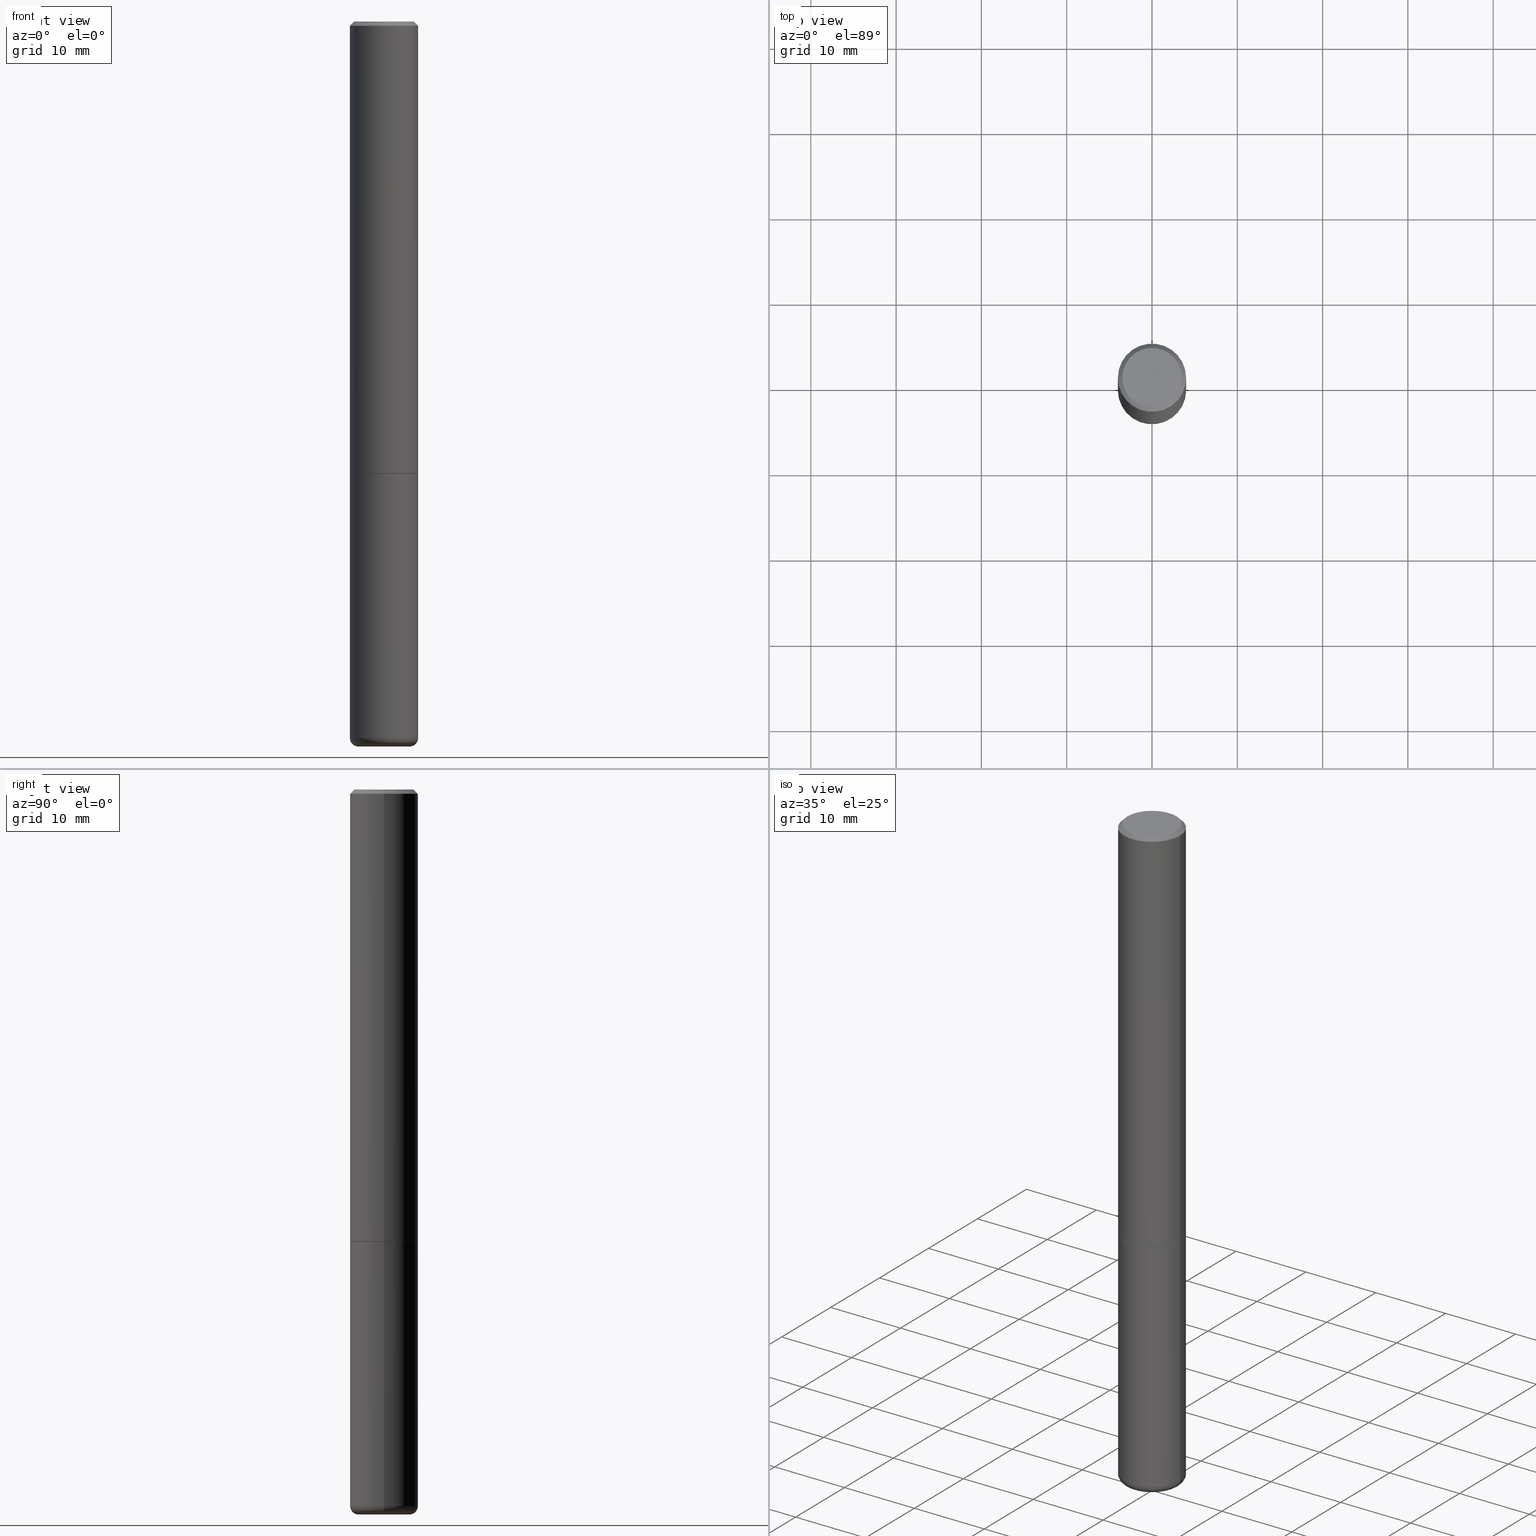
[diagram: canonical four-view strip — front | top / right | iso, engineering-drawing reading convention]
A machine part, canonical four-view strip (front | top / right | iso — engineering-drawing reading convention). The complete STEP part file that produces these views, byte-faithful:
ISO-10303-21;
HEADER;
FILE_DESCRIPTION (( 'STEP AP203' ),
    '1' );
FILE_NAME ('74390.STEP',
    '2024-03-06T15:10:43',
    ( '' ),
    ( '' ),
    'SwSTEP 2.0',
    'SolidWorks 2023',
    '' );
FILE_SCHEMA (( 'CONFIG_CONTROL_DESIGN' ));
ENDSEC;

DATA;
#1 = FACE_OUTER_BOUND ( 'NONE', #362, .T. ) ;
#2 = APPLICATION_CONTEXT ( 'configuration controlled 3d designs of mechanical parts and assemblies' ) ;
#3 = CC_DESIGN_APPROVAL ( #226, ( #187 ) ) ;
#4 = DIRECTION ( 'NONE',  ( 1.000000000000000000, -6.982962677686266711E-15, 0.000000000000000000 ) ) ;
#5 = DIRECTION ( 'NONE',  ( -6.982962677686266711E-15, -1.000000000000000000, 3.491481338843145583E-15 ) ) ;
#6 = ORIENTED_EDGE ( 'NONE', *, *, #119, .T. ) ;
#7 = PERSON ( 'UNSPECIFIED', 'UNSPECIFIED', 'UNSPECIFIED', ('UNSPECIFIED'), ('UNSPECIFIED'), ('UNSPECIFIED') ) ;
#8 = DIRECTION ( 'NONE',  ( 0.000000000000000000, 0.000000000000000000, 1.000000000000000000 ) ) ;
#9 = CIRCLE ( 'NONE', #244, 0.1575000000000001954 ) ;
#10 = CARTESIAN_POINT ( 'NONE',  ( 0.1180999999999999966, -1.237136582792291392E-14, -3.307099999999999707 ) ) ;
#11 = COORDINATED_UNIVERSAL_TIME_OFFSET ( 5, 0, .BEHIND. ) ;
#12 = DIRECTION ( 'NONE',  ( 1.000000000000000000, -6.982962677686271444E-15, 4.883557194083114583E-29 ) ) ;
#13 = ORIENTED_EDGE ( 'NONE', *, *, #220, .T. ) ;
#14 = PERSON_AND_ORGANIZATION_ROLE ( 'design_supplier' ) ;
#15 = PRODUCT_DEFINITION ( 'UNKNOWN', '', #187, #38 ) ;
#16 = ORIENTED_EDGE ( 'NONE', *, *, #354, .F. ) ;
#17 = CALENDAR_DATE ( 2024, 6, 3 ) ;
#18 = CC_DESIGN_APPROVAL ( #352, ( #15 ) ) ;
#19 = EDGE_LOOP ( 'NONE', ( #369, #106, #6, #74 ) ) ;
#20 = FACE_OUTER_BOUND ( 'NONE', #294, .T. ) ;
#21 = ORIENTED_EDGE ( 'NONE', *, *, #149, .T. ) ;
#22 = VERTEX_POINT ( 'NONE', #82 ) ;
#23 = VECTOR ( 'NONE', #406, 39.37007874015748143 ) ;
#24 = AXIS2_PLACEMENT_3D ( 'NONE', #68, #8, #104 ) ;
#25 = LINE ( 'NONE', #274, #23 ) ;
#26 = LINE ( 'NONE', #156, #56 ) ;
#27 = DIRECTION ( 'NONE',  ( -2.445468806185136597E-29, 3.491481338843145583E-15, 1.000000000000000000 ) ) ;
#28 = EDGE_CURVE ( 'NONE', #173, #402, #25, .T. ) ;
#29 = DIRECTION ( 'NONE',  ( -2.445468806185136597E-29, 3.491481338843145583E-15, 1.000000000000000000 ) ) ;
#30 = AXIS2_PLACEMENT_3D ( 'NONE', #51, #243, #83 ) ;
#31 = CONICAL_SURFACE ( 'NONE', #321, 0.1575000000000000289, 0.7853981633974481680 ) ;
#32 = CARTESIAN_POINT ( 'NONE',  ( 0.000000000000000000, 0.000000000000000000, 0.000000000000000000 ) ) ;
#33 = CARTESIAN_POINT ( 'NONE',  ( 0.1180999999999999966, -1.250893019267333313E-14, -3.346499999999999364 ) ) ;
#34 = CC_DESIGN_PERSON_AND_ORGANIZATION_ASSIGNMENT ( #334, #115, ( #48 ) ) ;
#35 = CARTESIAN_POINT ( 'NONE',  ( 0.000000000000000000, 0.000000000000000000, 0.000000000000000000 ) ) ;
#36 = CC_DESIGN_APPROVAL ( #384, ( #48 ) ) ;
#37 = ORIENTED_EDGE ( 'NONE', *, *, #205, .T. ) ;
#38 = DESIGN_CONTEXT ( 'detailed design', #52, 'design' ) ;
#39 = DIRECTION ( 'NONE',  ( -2.445468806185136597E-29, 3.491481338843145583E-15, 1.000000000000000000 ) ) ;
#40 = CONICAL_SURFACE ( 'NONE', #151, 0.1565000000000000002, 0.7853981633975165577 ) ;
#41 = LOCAL_TIME ( 10, 10, 43.00000000000000000, #261 ) ;
#42 =( GEOMETRIC_REPRESENTATION_CONTEXT ( 3 ) GLOBAL_UNCERTAINTY_ASSIGNED_CONTEXT ( ( #91 ) ) GLOBAL_UNIT_ASSIGNED_CONTEXT ( ( #101, #228, #129 ) ) REPRESENTATION_CONTEXT ( 'NONE', 'WORKASPACE' ) );
#43 = EDGE_LOOP ( 'NONE', ( #267, #67, #214, #16 ) ) ;
#44 = CC_DESIGN_PERSON_AND_ORGANIZATION_ASSIGNMENT ( #168, #171, ( #229 ) ) ;
#45 = LINE ( 'NONE', #270, #63 ) ;
#46 = EDGE_LOOP ( 'NONE', ( #309, #150, #155, #201 ) ) ;
#47 = PLANE ( 'NONE',  #86 ) ;
#48 = SECURITY_CLASSIFICATION ( '', '', #77 ) ;
#49 = PRODUCT_DEFINITION_SHAPE ( 'NONE', 'NONE',  #15 ) ;
#50 = CYLINDRICAL_SURFACE ( 'NONE', #98, 0.1575000000000000844 ) ;
#51 = CARTESIAN_POINT ( 'NONE',  ( -4.906101647375532782E-45, 7.004612900788102525E-31, 2.006200870347193393E-16 ) ) ;
#52 = APPLICATION_CONTEXT ( 'configuration controlled 3d designs of mechanical parts and assemblies' ) ;
#53 = VERTEX_POINT ( 'NONE', #337 ) ;
#54 = VERTEX_POINT ( 'NONE', #113 ) ;
#55 = EDGE_CURVE ( 'NONE', #138, #301, #186, .T. ) ;
#56 = VECTOR ( 'NONE', #121, 39.37007874015748143 ) ;
#57 = CARTESIAN_POINT ( 'NONE',  ( 0.1565000000000000002, -8.378507768821891605E-15, -2.086699999999999999 ) ) ;
#58 = ADVANCED_FACE ( 'NONE', ( #207 ), #47, .F. ) ;
#59 = CARTESIAN_POINT ( 'NONE',  ( 5.102959757866523939E-29, -7.285674109763990928E-15, -2.086699999999999999 ) ) ;
#60 = DIRECTION ( 'NONE',  ( -2.445468806185136597E-29, 3.491481338843145583E-15, 1.000000000000000000 ) ) ;
#61 = CARTESIAN_POINT ( 'NONE',  ( 4.890937612370281041E-31, -6.982962677686302702E-17, -0.02000000000000003511 ) ) ;
#62 = CIRCLE ( 'NONE', #158, 0.1575000000000000011 ) ;
#63 = VECTOR ( 'NONE', #329, 39.37007874015748143 ) ;
#64 = CARTESIAN_POINT ( 'NONE',  ( 4.890937612370281041E-31, -6.982962677686302702E-17, -0.02000000000000003511 ) ) ;
#65 = LENGTH_MEASURE_WITH_UNIT ( LENGTH_MEASURE( 0.02539999999999999897 ), #259 );
#66 = CONICAL_SURFACE ( 'NONE', #415, 0.1575000000000000289, 0.7853981633974481680 ) ;
#67 = ORIENTED_EDGE ( 'NONE', *, *, #85, .T. ) ;
#68 = CARTESIAN_POINT ( 'NONE',  ( 0.000000000000000000, 0.000000000000000000, 0.000000000000000000 ) ) ;
#69 = DIRECTION ( 'NONE',  ( -2.445468806185136597E-29, 3.491481338843145583E-15, 1.000000000000000000 ) ) ;
#70 = ORIENTED_EDGE ( 'NONE', *, *, #269, .T. ) ;
#71 = PERSON_AND_ORGANIZATION_ROLE ( 'creator' ) ;
#72 = CARTESIAN_POINT ( 'NONE',  ( 9.601573681818600950E-16, 0.1374999999999997891, -3.797686405735721404E-16 ) ) ;
#73 = PERSON_AND_ORGANIZATION ( #7, #311 ) ;
#74 = ORIENTED_EDGE ( 'NONE', *, *, #149, .F. ) ;
#75 = DIRECTION ( 'NONE',  ( 1.000000000000000000, -6.982962677686268288E-15, 0.000000000000000000 ) ) ;
#76 = ORIENTED_EDGE ( 'NONE', *, *, #205, .F. ) ;
#77 = SECURITY_CLASSIFICATION_LEVEL ( 'unclassified' ) ;
#78 = CARTESIAN_POINT ( 'NONE',  ( 5.102959757866523939E-29, -7.285674109763990928E-15, -2.086699999999999999 ) ) ;
#79 = ORIENTED_EDGE ( 'NONE', *, *, #367, .T. ) ;
#80 = CIRCLE ( 'NONE', #191, 0.1180999999999999966 ) ;
#81 = CIRCLE ( 'NONE', #316, 0.1575000000000000011 ) ;
#82 = CARTESIAN_POINT ( 'NONE',  ( 0.1374999999999997891, -1.046838268059731505E-15, 2.006200870347263405E-16 ) ) ;
#83 = DIRECTION ( 'NONE',  ( 1.000000000000000000, -6.982962677686267499E-15, 4.874794762600771100E-29 ) ) ;
#84 = FACE_OUTER_BOUND ( 'NONE', #231, .T. ) ;
#85 = EDGE_CURVE ( 'NONE', #22, #54, #306, .T. ) ;
#86 = AXIS2_PLACEMENT_3D ( 'NONE', #246, #336, #179 ) ;
#87 = TOROIDAL_SURFACE ( 'NONE', #192, 0.1180999999999999966, 0.03939999999999978936 ) ;
#88 = DIRECTION ( 'NONE',  ( -2.445468806185136597E-29, 3.491481338843145583E-15, 1.000000000000000000 ) ) ;
#89 = CARTESIAN_POINT ( 'NONE',  ( 1.899479400543291086E-28, 3.797771773731543077E-15, -3.346499999999999808 ) ) ;
#90 = FACE_OUTER_BOUND ( 'NONE', #141, .T. ) ;
#91 = UNCERTAINTY_MEASURE_WITH_UNIT (LENGTH_MEASURE( 1.000000000000000082E-05 ), #101, 'distance_accuracy_value', 'NONE');
#92 = CARTESIAN_POINT ( 'NONE',  ( 0.1575000000000001954, -8.381999250160736190E-15, -2.085699999999999665 ) ) ;
#93 = CIRCLE ( 'NONE', #235, 0.1575000000000001954 ) ;
#94 = ORIENTED_EDGE ( 'NONE', *, *, #164, .T. ) ;
#95 = EDGE_CURVE ( 'NONE', #22, #234, #97, .T. ) ;
#96 = DATE_AND_TIME ( #393, #41 ) ;
#97 = CIRCLE ( 'NONE', #30, 0.1374999999999997891 ) ;
#98 = AXIS2_PLACEMENT_3D ( 'NONE', #237, #39, #266 ) ;
#99 = PERSON_AND_ORGANIZATION ( #7, #311 ) ;
#100 = DIRECTION ( 'NONE',  ( 1.000000000000000000, -6.982962677686268288E-15, 0.000000000000000000 ) ) ;
#101 =( CONVERSION_BASED_UNIT ( 'INCH', #65 ) LENGTH_UNIT ( ) NAMED_UNIT ( #136 ) );
#102 = DIRECTION ( 'NONE',  ( 2.445468806185136597E-29, -3.491481338843145583E-15, -1.000000000000000000 ) ) ;
#103 = VERTEX_POINT ( 'NONE', #184 ) ;
#104 = DIRECTION ( 'NONE',  ( 1.000000000000000000, 0.000000000000000000, 0.000000000000000000 ) ) ;
#105 = CYLINDRICAL_SURFACE ( 'NONE', #153, 0.1575000000000000844 ) ;
#106 = ORIENTED_EDGE ( 'NONE', *, *, #250, .T. ) ;
#107 = AXIS2_PLACEMENT_3D ( 'NONE', #72, #200, #373 ) ;
#108 = APPROVAL_STATUS ( 'not_yet_approved' ) ;
#109 = CARTESIAN_POINT ( 'NONE',  ( -0.1180999999999999966, -1.070752696475548667E-14, -3.307099999999999707 ) ) ;
#110 = EDGE_CURVE ( 'NONE', #301, #366, #62, .T. ) ;
#111 = SHAPE_DEFINITION_REPRESENTATION ( #49, #256 ) ;
#112 = CARTESIAN_POINT ( 'NONE',  ( -0.1574999999999998901, -1.042757312686600805E-14, -3.307099999999999707 ) ) ;
#113 = CARTESIAN_POINT ( 'NONE',  ( 0.1575000000000000289, -1.150358061425879472E-15, -0.02000000000000003511 ) ) ;
#114 = ORIENTED_EDGE ( 'NONE', *, *, #164, .F. ) ;
#115 = PERSON_AND_ORGANIZATION_ROLE ( 'classification_officer' ) ;
#116 = VECTOR ( 'NONE', #145, 39.37007874015748854 ) ;
#117 = DIRECTION ( 'NONE',  ( -1.000000000000000000, 7.105427357601014480E-15, 0.000000000000000000 ) ) ;
#118 = LINE ( 'NONE', #57, #263 ) ;
#119 = EDGE_CURVE ( 'NONE', #404, #209, #118, .T. ) ;
#120 = ADVANCED_FACE ( 'NONE', ( #223 ), #40, .T. ) ;
#121 = DIRECTION ( 'NONE',  ( -2.445468806185136877E-29, 3.491481338843145188E-15, 1.000000000000000000 ) ) ;
#122 = FACE_OUTER_BOUND ( 'NONE', #127, .T. ) ;
#123 = DIRECTION ( 'NONE',  ( 1.000000000000000000, -6.982962677686271444E-15, 4.883557194083114583E-29 ) ) ;
#124 = ADVANCED_FACE ( 'NONE', ( #194 ), #252, .T. ) ;
#125 = DIRECTION ( 'NONE',  ( -2.445468806185136597E-29, 3.491481338843145583E-15, 1.000000000000000000 ) ) ;
#126 = AXIS2_PLACEMENT_3D ( 'NONE', #61, #350, #411 ) ;
#127 = EDGE_LOOP ( 'NONE', ( #330, #166 ) ) ;
#128 = ADVANCED_FACE ( 'NONE', ( #90 ), #412, .F. ) ;
#129 =( NAMED_UNIT ( * ) SI_UNIT ( $, .STERADIAN. ) SOLID_ANGLE_UNIT ( ) );
#130 = EDGE_CURVE ( 'NONE', #198, #138, #80, .T. ) ;
#131 = ORIENTED_EDGE ( 'NONE', *, *, #322, .F. ) ;
#132 = MECHANICAL_CONTEXT ( 'NONE', #2, 'mechanical' ) ;
#133 = VECTOR ( 'NONE', #302, 39.37007874015748854 ) ;
#134 = PERSON_AND_ORGANIZATION ( #7, #311 ) ;
#135 = EDGE_LOOP ( 'NONE', ( #303, #224, #391, #204 ) ) ;
#136 = DIMENSIONAL_EXPONENTS ( 1.000000000000000000, 0.000000000000000000, 0.000000000000000000, 0.000000000000000000, 0.000000000000000000, 0.000000000000000000, 0.000000000000000000 ) ;
#137 = DATE_TIME_ROLE ( 'creation_date' ) ;
#138 = VERTEX_POINT ( 'NONE', #253 ) ;
#139 = DATE_TIME_ROLE ( 'classification_date' ) ;
#140 = DIRECTION ( 'NONE',  ( -2.445468806185136877E-29, 3.491481338843145188E-15, 1.000000000000000000 ) ) ;
#141 = EDGE_LOOP ( 'NONE', ( #114, #148 ) ) ;
#142 = CIRCLE ( 'NONE', #245, 0.1565000000000000002 ) ;
#143 = CC_DESIGN_DATE_AND_TIME_ASSIGNMENT ( #163, #137, ( #15 ) ) ;
#144 = CARTESIAN_POINT ( 'NONE',  ( 4.890937612370281041E-31, -6.982962677686302702E-17, -0.02000000000000003511 ) ) ;
#145 = DIRECTION ( 'NONE',  ( 0.7071067811865473507, -7.319954787623254468E-15, -0.7071067811865475727 ) ) ;
#146 = APPROVAL_ROLE ( '' ) ;
#147 = DIRECTION ( 'NONE',  ( -2.445468806185136597E-29, 3.491481338843145583E-15, 1.000000000000000000 ) ) ;
#148 = ORIENTED_EDGE ( 'NONE', *, *, #250, .F. ) ;
#149 = EDGE_CURVE ( 'NONE', #402, #209, #9, .T. ) ;
#150 = ORIENTED_EDGE ( 'NONE', *, *, #55, .T. ) ;
#151 = AXIS2_PLACEMENT_3D ( 'NONE', #287, #88, #314 ) ;
#152 = PERSON_AND_ORGANIZATION ( #7, #311 ) ;
#153 = AXIS2_PLACEMENT_3D ( 'NONE', #203, #273, #282 ) ;
#154 = CARTESIAN_POINT ( 'NONE',  ( 0.1565000000000000002, -8.378507768821891605E-15, -2.086699999999999999 ) ) ;
#155 = ORIENTED_EDGE ( 'NONE', *, *, #202, .F. ) ;
#156 = CARTESIAN_POINT ( 'NONE',  ( 0.1575000000000000844, -1.099816621735587677E-15, 7.679978421878603638E-30 ) ) ;
#157 = DIRECTION ( 'NONE',  ( -2.445468806185136597E-29, 3.491481338843145583E-15, 1.000000000000000000 ) ) ;
#158 = AXIS2_PLACEMENT_3D ( 'NONE', #377, #157, #248 ) ;
#159 = CIRCLE ( 'NONE', #395, 0.1180999999999999966 ) ;
#160 = DIRECTION ( 'NONE',  ( 0.7071067811865957564, -2.468850131082761932E-15, 0.7071067811864992780 ) ) ;
#161 = DIRECTION ( 'NONE',  ( 1.000000000000000000, -6.982962677686267499E-15, 0.000000000000000000 ) ) ;
#162 = DIRECTION ( 'NONE',  ( -2.445468806185136597E-29, 3.491481338843145583E-15, 1.000000000000000000 ) ) ;
#163 = DATE_AND_TIME ( #400, #307 ) ;
#164 = EDGE_CURVE ( 'NONE', #404, #173, #295, .T. ) ;
#165 = APPROVAL_PERSON_ORGANIZATION ( #152, #384, #146 ) ;
#166 = ORIENTED_EDGE ( 'NONE', *, *, #293, .F. ) ;
#167 = PERSON_AND_ORGANIZATION ( #7, #311 ) ;
#168 = PERSON_AND_ORGANIZATION ( #7, #311 ) ;
#169 = AXIS2_PLACEMENT_3D ( 'NONE', #381, #285, #313 ) ;
#170 = AXIS2_PLACEMENT_3D ( 'NONE', #35, #276, #242 ) ;
#171 = PERSON_AND_ORGANIZATION_ROLE ( 'design_owner' ) ;
#172 = FACE_OUTER_BOUND ( 'NONE', #46, .T. ) ;
#173 = VERTEX_POINT ( 'NONE', #190 ) ;
#174 = CARTESIAN_POINT ( 'NONE',  ( 8.183761359898558662E-29, -1.168424230043858487E-14, -3.346499999999999364 ) ) ;
#175 = ORIENTED_EDGE ( 'NONE', *, *, #202, .T. ) ;
#176 = CC_DESIGN_PERSON_AND_ORGANIZATION_ASSIGNMENT ( #99, #324, ( #187 ) ) ;
#177 = ADVANCED_FACE ( 'NONE', ( #122 ), #386, .T. ) ;
#178 = DIRECTION ( 'NONE',  ( -2.445468806185136597E-29, 3.491481338843145583E-15, 1.000000000000000000 ) ) ;
#179 = DIRECTION ( 'NONE',  ( -1.000000000000000000, 6.982962677686265922E-15, -4.876176775795935793E-29 ) ) ;
#180 = CIRCLE ( 'NONE', #279, 0.1575000000000000011 ) ;
#181 = DIRECTION ( 'NONE',  ( -1.000000000000000000, 6.982962677686267499E-15, 0.000000000000000000 ) ) ;
#182 = VERTEX_POINT ( 'NONE', #215 ) ;
#183 = COORDINATED_UNIVERSAL_TIME_OFFSET ( 5, 0, .BEHIND. ) ;
#184 = CARTESIAN_POINT ( 'NONE',  ( -0.1575000000000000289, 1.029986994958724182E-15, -0.02000000000000003511 ) ) ;
#185 = ORIENTED_EDGE ( 'NONE', *, *, #236, .F. ) ;
#186 = CIRCLE ( 'NONE', #355, 0.03939999999999978936 ) ;
#187 = PRODUCT_DEFINITION_FORMATION_WITH_SPECIFIED_SOURCE ( 'ANY', '', #229, .NOT_KNOWN. ) ;
#188 = DIRECTION ( 'NONE',  ( -1.000000000000000000, 6.982962677686267499E-15, 0.000000000000000000 ) ) ;
#189 = CARTESIAN_POINT ( 'NONE',  ( 5.100514289060338336E-29, -7.282182628425147921E-15, -2.085699999999999665 ) ) ;
#190 = CARTESIAN_POINT ( 'NONE',  ( -0.1565000000000000002, -6.168376273951211931E-15, -2.086699999999999999 ) ) ;
#191 = AXIS2_PLACEMENT_3D ( 'NONE', #347, #318, #418 ) ;
#192 = AXIS2_PLACEMENT_3D ( 'NONE', #193, #317, #123 ) ;
#193 = CARTESIAN_POINT ( 'NONE',  ( 8.087409888934865187E-29, -1.154667793568816566E-14, -3.307099999999999707 ) ) ;
#194 = FACE_OUTER_BOUND ( 'NONE', #213, .T. ) ;
#195 = CONICAL_SURFACE ( 'NONE', #338, 0.1565000000000000002, 0.7853981633975165577 ) ;
#196 = DATE_AND_TIME ( #265, #357 ) ;
#197 = ORIENTED_EDGE ( 'NONE', *, *, #269, .F. ) ;
#198 = VERTEX_POINT ( 'NONE', #33 ) ;
#199 = CIRCLE ( 'NONE', #211, 0.1575000000000000289 ) ;
#200 = DIRECTION ( 'NONE',  ( 2.438088387897960049E-29, -3.491481338843145188E-15, -1.000000000000000000 ) ) ;
#201 = ORIENTED_EDGE ( 'NONE', *, *, #417, .F. ) ;
#202 = EDGE_CURVE ( 'NONE', #366, #301, #408, .T. ) ;
#203 = CARTESIAN_POINT ( 'NONE',  ( 0.000000000000000000, 0.000000000000000000, 0.000000000000000000 ) ) ;
#204 = ORIENTED_EDGE ( 'NONE', *, *, #220, .F. ) ;
#205 = EDGE_CURVE ( 'NONE', #103, #54, #199, .T. ) ;
#206 = CARTESIAN_POINT ( 'NONE',  ( 5.100514289060338336E-29, -7.282182628425147921E-15, -2.085699999999999665 ) ) ;
#207 = FACE_OUTER_BOUND ( 'NONE', #271, .T. ) ;
#208 = ADVANCED_FACE ( 'NONE', ( #416 ), #87, .T. ) ;
#209 = VERTEX_POINT ( 'NONE', #92 ) ;
#210 = EDGE_CURVE ( 'NONE', #54, #103, #272, .T. ) ;
#211 = AXIS2_PLACEMENT_3D ( 'NONE', #288, #29, #161 ) ;
#212 = COORDINATED_UNIVERSAL_TIME_OFFSET ( 5, 0, .BEHIND. ) ;
#213 = EDGE_LOOP ( 'NONE', ( #185, #310, #79, #277 ) ) ;
#214 = ORIENTED_EDGE ( 'NONE', *, *, #210, .T. ) ;
#215 = CARTESIAN_POINT ( 'NONE',  ( -0.1575000000000000011, -8.297071213903919899E-15, -2.086699999999999999 ) ) ;
#216 = CARTESIAN_POINT ( 'NONE',  ( -0.1575000000000000011, 1.119104808822157801E-15, -7.747322767151475583E-30 ) ) ;
#217 = ADVANCED_FACE ( 'NONE', ( #84 ), #31, .T. ) ;
#218 = DIRECTION ( 'NONE',  ( 1.000000000000000000, -6.982962677686265922E-15, 4.876176775795935232E-29 ) ) ;
#219 = DIRECTION ( 'NONE',  ( -2.445468806185136597E-29, 3.491481338843145583E-15, 1.000000000000000000 ) ) ;
#220 = EDGE_CURVE ( 'NONE', #209, #54, #26, .T. ) ;
#221 = AXIS2_PLACEMENT_3D ( 'NONE', #315, #219, #281 ) ;
#222 = CIRCLE ( 'NONE', #296, 0.1374999999999997891 ) ;
#223 = FACE_OUTER_BOUND ( 'NONE', #19, .T. ) ;
#224 = ORIENTED_EDGE ( 'NONE', *, *, #322, .T. ) ;
#225 = APPROVAL_PERSON_ORGANIZATION ( #291, #226, #292 ) ;
#226 = APPROVAL ( #320, 'UNSPECIFIED' ) ;
#227 = CARTESIAN_POINT ( 'NONE',  ( -0.1575000000000000289, 1.029986994958724182E-15, -0.02000000000000003511 ) ) ;
#228 =( NAMED_UNIT ( * ) PLANE_ANGLE_UNIT ( ) SI_UNIT ( $, .RADIAN. ) );
#229 = PRODUCT ( '74390', '74390', '', ( #132 ) ) ;
#230 = DIRECTION ( 'NONE',  ( 1.000000000000000000, -6.982962677686273021E-15, 0.000000000000000000 ) ) ;
#231 = EDGE_LOOP ( 'NONE', ( #240, #197, #325, #37 ) ) ;
#232 = APPLICATION_PROTOCOL_DEFINITION ( 'international standard', 'config_control_design', 1994, #2 ) ;
#233 = FACE_OUTER_BOUND ( 'NONE', #43, .T. ) ;
#234 = VERTEX_POINT ( 'NONE', #249 ) ;
#235 = AXIS2_PLACEMENT_3D ( 'NONE', #206, #178, #305 ) ;
#236 = EDGE_CURVE ( 'NONE', #301, #182, #382, .T. ) ;
#237 = CARTESIAN_POINT ( 'NONE',  ( 0.000000000000000000, 0.000000000000000000, 0.000000000000000000 ) ) ;
#238 = DIRECTION ( 'NONE',  ( 7.105427357601001859E-15, 1.000000000000000000, -3.491481338843145583E-15 ) ) ;
#239 = PLANE ( 'NONE',  #107 ) ;
#240 = ORIENTED_EDGE ( 'NONE', *, *, #85, .F. ) ;
#241 = MANIFOLD_SOLID_BREP ( 'Body-Move/Copy2[2]', #304 ) ;
#242 = DIRECTION ( 'NONE',  ( 1.000000000000000000, -6.982962677686265922E-15, 4.876176775795935232E-29 ) ) ;
#243 = DIRECTION ( 'NONE',  ( -2.445468806185136597E-29, 3.491481338843145583E-15, 1.000000000000000000 ) ) ;
#244 = AXIS2_PLACEMENT_3D ( 'NONE', #189, #60, #413 ) ;
#245 = AXIS2_PLACEMENT_3D ( 'NONE', #59, #125, #258 ) ;
#246 = CARTESIAN_POINT ( 'NONE',  ( 5.102959757866523939E-29, -7.285674109763990928E-15, -2.086699999999999999 ) ) ;
#247 = CARTESIAN_POINT ( 'NONE',  ( -0.1575000000000001954, -2.556901318778844062E-15, -2.085699999999999665 ) ) ;
#248 = DIRECTION ( 'NONE',  ( 1.000000000000000000, -6.982962677686261977E-15, 0.000000000000000000 ) ) ;
#249 = CARTESIAN_POINT ( 'NONE',  ( -0.1374999999999997891, 9.950721815702925329E-16, 2.006200870347125108E-16 ) ) ;
#250 = EDGE_CURVE ( 'NONE', #173, #404, #142, .T. ) ;
#251 = CYLINDRICAL_SURFACE ( 'NONE', #170, 0.1575000000000000011 ) ;
#252 = CYLINDRICAL_SURFACE ( 'NONE', #376, 0.1575000000000000011 ) ;
#253 = CARTESIAN_POINT ( 'NONE',  ( -0.1180999999999999966, -1.063633222818595776E-14, -3.346499999999999364 ) ) ;
#254 = CARTESIAN_POINT ( 'NONE',  ( 5.102959757866523939E-29, -7.285674109763990928E-15, -2.086699999999999999 ) ) ;
#255 = AXIS2_PLACEMENT_3D ( 'NONE', #254, #348, #383 ) ;
#256 = ADVANCED_BREP_SHAPE_REPRESENTATION ( '74390', ( #392, #241, #24 ), #42 ) ;
#257 = VECTOR ( 'NONE', #140, 39.37007874015748143 ) ;
#258 = DIRECTION ( 'NONE',  ( 1.000000000000000000, -6.982962677686267499E-15, 0.000000000000000000 ) ) ;
#259 =( LENGTH_UNIT ( ) NAMED_UNIT ( * ) SI_UNIT ( $, .METRE. ) );
#260 = ORIENTED_EDGE ( 'NONE', *, *, #28, .T. ) ;
#261 = COORDINATED_UNIVERSAL_TIME_OFFSET ( 5, 0, .BEHIND. ) ;
#262 = ORIENTED_EDGE ( 'NONE', *, *, #293, .T. ) ;
#263 = VECTOR ( 'NONE', #160, 39.37007874015748143 ) ;
#264 = VECTOR ( 'NONE', #346, 39.37007874015748143 ) ;
#265 = CALENDAR_DATE ( 2024, 6, 3 ) ;
#266 = DIRECTION ( 'NONE',  ( 1.000000000000000000, -6.982962677686267499E-15, 4.876176775795936353E-29 ) ) ;
#267 = ORIENTED_EDGE ( 'NONE', *, *, #95, .F. ) ;
#268 = CARTESIAN_POINT ( 'NONE',  ( 5.102959757866523939E-29, -7.285674109763990928E-15, -2.086699999999999999 ) ) ;
#269 = EDGE_CURVE ( 'NONE', #234, #22, #222, .T. ) ;
#270 = CARTESIAN_POINT ( 'NONE',  ( 0.1575000000000000011, -1.099816621735586889E-15, 7.679978421878598033E-30 ) ) ;
#271 = EDGE_LOOP ( 'NONE', ( #379, #409 ) ) ;
#272 = CIRCLE ( 'NONE', #126, 0.1575000000000000289 ) ;
#273 = DIRECTION ( 'NONE',  ( -2.445468806185136597E-29, 3.491481338843145583E-15, 1.000000000000000000 ) ) ;
#274 = CARTESIAN_POINT ( 'NONE',  ( -0.1565000000000000002, -6.173674728299434333E-15, -2.086699999999999999 ) ) ;
#275 = DATE_AND_TIME ( #341, #403 ) ;
#276 = DIRECTION ( 'NONE',  ( -2.445468806185136597E-29, 3.491481338843145583E-15, 1.000000000000000000 ) ) ;
#277 = ORIENTED_EDGE ( 'NONE', *, *, #351, .F. ) ;
#278 = ORIENTED_EDGE ( 'NONE', *, *, #372, .F. ) ;
#279 = AXIS2_PLACEMENT_3D ( 'NONE', #78, #69, #75 ) ;
#280 = ADVANCED_FACE ( 'NONE', ( #1 ), #195, .T. ) ;
#281 = DIRECTION ( 'NONE',  ( 1.000000000000000000, -6.982962677686261977E-15, 0.000000000000000000 ) ) ;
#282 = DIRECTION ( 'NONE',  ( 1.000000000000000000, -6.982962677686267499E-15, 4.876176775795936353E-29 ) ) ;
#283 = DIRECTION ( 'NONE',  ( -1.000000000000000000, 6.982962677686265922E-15, -4.876176775795935793E-29 ) ) ;
#284 = ADVANCED_FACE ( 'NONE', ( #20 ), #50, .T. ) ;
#285 = DIRECTION ( 'NONE',  ( -2.445468806185136597E-29, 3.491481338843145583E-15, 1.000000000000000000 ) ) ;
#286 = CC_DESIGN_SECURITY_CLASSIFICATION ( #48, ( #187 ) ) ;
#287 = CARTESIAN_POINT ( 'NONE',  ( 5.102959757866523939E-29, -7.285674109763990928E-15, -2.086699999999999999 ) ) ;
#288 = CARTESIAN_POINT ( 'NONE',  ( 4.890937612370281041E-31, -6.982962677686302702E-17, -0.02000000000000003511 ) ) ;
#289 = DIRECTION ( 'NONE',  ( 1.000000000000000000, -6.982962677686267499E-15, 4.874794762600771100E-29 ) ) ;
#290 = ADVANCED_FACE ( 'NONE', ( #233 ), #66, .T. ) ;
#291 = PERSON_AND_ORGANIZATION ( #7, #311 ) ;
#292 = APPROVAL_ROLE ( '' ) ;
#293 = EDGE_CURVE ( 'NONE', #138, #198, #159, .T. ) ;
#294 = EDGE_LOOP ( 'NONE', ( #131, #21, #13, #76 ) ) ;
#295 = CIRCLE ( 'NONE', #169, 0.1565000000000000002 ) ;
#296 = AXIS2_PLACEMENT_3D ( 'NONE', #389, #162, #289 ) ;
#297 = LINE ( 'NONE', #335, #257 ) ;
#298 = ORIENTED_EDGE ( 'NONE', *, *, #110, .F. ) ;
#299 = APPROVAL_ROLE ( '' ) ;
#300 = CARTESIAN_POINT ( 'NONE',  ( 8.087409888934865187E-29, -1.154667793568816566E-14, -3.307099999999999707 ) ) ;
#301 = VERTEX_POINT ( 'NONE', #112 ) ;
#302 = DIRECTION ( 'NONE',  ( -0.7071067811865473507, 2.468850131082255483E-15, -0.7071067811865475727 ) ) ;
#303 = ORIENTED_EDGE ( 'NONE', *, *, #372, .T. ) ;
#304 = CLOSED_SHELL ( 'NONE', ( #280, #390, #290, #217, #284, #120, #128, #358 ) ) ;
#305 = DIRECTION ( 'NONE',  ( 1.000000000000000000, -6.982962677686265922E-15, 0.000000000000000000 ) ) ;
#306 = LINE ( 'NONE', #340, #116 ) ;
#307 = LOCAL_TIME ( 10, 10, 43.00000000000000000, #11 ) ;
#308 = EDGE_LOOP ( 'NONE', ( #175, #374, #353, #327 ) ) ;
#309 = ORIENTED_EDGE ( 'NONE', *, *, #130, .T. ) ;
#310 = ORIENTED_EDGE ( 'NONE', *, *, #110, .T. ) ;
#311 = ORGANIZATION ( 'UNSPECIFIED', 'UNSPECIFIED', '' ) ;
#312 = EDGE_CURVE ( 'NONE', #53, #182, #180, .T. ) ;
#313 = DIRECTION ( 'NONE',  ( 1.000000000000000000, -6.982962677686267499E-15, 0.000000000000000000 ) ) ;
#314 = DIRECTION ( 'NONE',  ( 1.000000000000000000, -6.982962677686267499E-15, 0.000000000000000000 ) ) ;
#315 = CARTESIAN_POINT ( 'NONE',  ( 8.087409888934865187E-29, -1.154667793568816566E-14, -3.307099999999999707 ) ) ;
#316 = AXIS2_PLACEMENT_3D ( 'NONE', #268, #396, #100 ) ;
#317 = DIRECTION ( 'NONE',  ( -2.445468806185136597E-29, 3.491481338843145583E-15, 1.000000000000000000 ) ) ;
#318 = DIRECTION ( 'NONE',  ( -2.445468806185136597E-29, 3.491481338843145583E-15, 1.000000000000000000 ) ) ;
#319 = CARTESIAN_POINT ( 'NONE',  ( 5.102959757866523939E-29, -7.285674109763990928E-15, -2.086699999999999999 ) ) ;
#320 = APPROVAL_STATUS ( 'not_yet_approved' ) ;
#321 = AXIS2_PLACEMENT_3D ( 'NONE', #64, #343, #188 ) ;
#322 = EDGE_CURVE ( 'NONE', #402, #103, #297, .T. ) ;
#323 = ORIENTED_EDGE ( 'NONE', *, *, #417, .T. ) ;
#324 = PERSON_AND_ORGANIZATION_ROLE ( 'creator' ) ;
#325 = ORIENTED_EDGE ( 'NONE', *, *, #354, .T. ) ;
#326 = LINE ( 'NONE', #227, #133 ) ;
#327 = ORIENTED_EDGE ( 'NONE', *, *, #367, .F. ) ;
#328 = TOROIDAL_SURFACE ( 'NONE', #349, 0.1180999999999999966, 0.03939999999999978936 ) ;
#329 = DIRECTION ( 'NONE',  ( -2.445468806185136877E-29, 3.491481338843145188E-15, 1.000000000000000000 ) ) ;
#330 = ORIENTED_EDGE ( 'NONE', *, *, #130, .F. ) ;
#331 = APPROVAL_STATUS ( 'not_yet_approved' ) ;
#332 = EDGE_LOOP ( 'NONE', ( #407, #262, #323, #298 ) ) ;
#333 = DIRECTION ( 'NONE',  ( -2.445468806185136597E-29, 3.491481338843145583E-15, 1.000000000000000000 ) ) ;
#334 = PERSON_AND_ORGANIZATION ( #7, #311 ) ;
#335 = CARTESIAN_POINT ( 'NONE',  ( -0.1575000000000000844, 1.119104808822158392E-15, -7.747322767151481189E-30 ) ) ;
#336 = DIRECTION ( 'NONE',  ( 2.438088387897960049E-29, -3.491481338843145188E-15, -1.000000000000000000 ) ) ;
#337 = CARTESIAN_POINT ( 'NONE',  ( 0.1575000000000000011, -8.385490731499577619E-15, -2.086699999999999999 ) ) ;
#338 = AXIS2_PLACEMENT_3D ( 'NONE', #319, #333, #378 ) ;
#339 = DATE_AND_TIME ( #17, #344 ) ;
#340 = CARTESIAN_POINT ( 'NONE',  ( 0.1575000000000000289, -1.150358061425879472E-15, -0.02000000000000003511 ) ) ;
#341 = CALENDAR_DATE ( 2024, 6, 3 ) ;
#342 = ORIENTED_EDGE ( 'NONE', *, *, #119, .F. ) ;
#343 = DIRECTION ( 'NONE',  ( 2.445468806185136597E-29, -3.491481338843145583E-15, -1.000000000000000000 ) ) ;
#344 = LOCAL_TIME ( 10, 10, 43.00000000000000000, #212 ) ;
#345 = FACE_OUTER_BOUND ( 'NONE', #308, .T. ) ;
#346 = DIRECTION ( 'NONE',  ( -2.445468806185136877E-29, 3.491481338843145188E-15, 1.000000000000000000 ) ) ;
#347 = CARTESIAN_POINT ( 'NONE',  ( 8.183761359898558662E-29, -1.168424230043858487E-14, -3.346499999999999364 ) ) ;
#348 = DIRECTION ( 'NONE',  ( -2.438088387897960049E-29, 3.491481338843145188E-15, 1.000000000000000000 ) ) ;
#349 = AXIS2_PLACEMENT_3D ( 'NONE', #300, #365, #12 ) ;
#350 = DIRECTION ( 'NONE',  ( -2.445468806185136597E-29, 3.491481338843145583E-15, 1.000000000000000000 ) ) ;
#351 = EDGE_CURVE ( 'NONE', #182, #53, #81, .T. ) ;
#352 = APPROVAL ( #331, 'UNSPECIFIED' ) ;
#353 = ORIENTED_EDGE ( 'NONE', *, *, #312, .F. ) ;
#354 = EDGE_CURVE ( 'NONE', #234, #103, #326, .T. ) ;
#355 = AXIS2_PLACEMENT_3D ( 'NONE', #109, #238, #117 ) ;
#356 = APPROVAL_DATE_TIME ( #96, #226 ) ;
#357 = LOCAL_TIME ( 10, 10, 43.00000000000000000, #363 ) ;
#358 = ADVANCED_FACE ( 'NONE', ( #361 ), #239, .F. ) ;
#359 = ORIENTED_EDGE ( 'NONE', *, *, #95, .T. ) ;
#360 = CC_DESIGN_PERSON_AND_ORGANIZATION_ASSIGNMENT ( #167, #14, ( #187 ) ) ;
#361 = FACE_OUTER_BOUND ( 'NONE', #399, .T. ) ;
#362 = EDGE_LOOP ( 'NONE', ( #94, #260, #278, #342 ) ) ;
#363 = COORDINATED_UNIVERSAL_TIME_OFFSET ( 5, 0, .BEHIND. ) ;
#364 = APPROVAL_PERSON_ORGANIZATION ( #134, #352, #299 ) ;
#365 = DIRECTION ( 'NONE',  ( -2.445468806185136597E-29, 3.491481338843145583E-15, 1.000000000000000000 ) ) ;
#366 = VERTEX_POINT ( 'NONE', #368 ) ;
#367 = EDGE_CURVE ( 'NONE', #366, #53, #45, .T. ) ;
#368 = CARTESIAN_POINT ( 'NONE',  ( 0.1574999999999998901, -1.264649455742375235E-14, -3.307099999999999707 ) ) ;
#369 = ORIENTED_EDGE ( 'NONE', *, *, #28, .F. ) ;
#370 = CC_DESIGN_PERSON_AND_ORGANIZATION_ASSIGNMENT ( #73, #71, ( #15 ) ) ;
#371 = APPROVAL_DATE_TIME ( #275, #384 ) ;
#372 = EDGE_CURVE ( 'NONE', #209, #402, #93, .T. ) ;
#373 = DIRECTION ( 'NONE',  ( -1.000000000000000000, 6.982962677686265922E-15, -4.876176775795935793E-29 ) ) ;
#374 = ORIENTED_EDGE ( 'NONE', *, *, #236, .T. ) ;
#375 = ADVANCED_FACE ( 'NONE', ( #172 ), #328, .T. ) ;
#376 = AXIS2_PLACEMENT_3D ( 'NONE', #32, #27, #218 ) ;
#377 = CARTESIAN_POINT ( 'NONE',  ( 8.087409888934865187E-29, -1.154667793568816566E-14, -3.307099999999999707 ) ) ;
#378 = DIRECTION ( 'NONE',  ( 1.000000000000000000, -6.982962677686267499E-15, 0.000000000000000000 ) ) ;
#379 = ORIENTED_EDGE ( 'NONE', *, *, #312, .T. ) ;
#380 = PRODUCT_RELATED_PRODUCT_CATEGORY ( 'detail', '', ( #229 ) ) ;
#381 = CARTESIAN_POINT ( 'NONE',  ( 5.102959757866523939E-29, -7.285674109763990928E-15, -2.086699999999999999 ) ) ;
#382 = LINE ( 'NONE', #216, #264 ) ;
#383 = DIRECTION ( 'NONE',  ( 1.000000000000000000, -6.982962677686265922E-15, 4.876176775795935793E-29 ) ) ;
#384 = APPROVAL ( #108, 'UNSPECIFIED' ) ;
#385 = DIRECTION ( 'NONE',  ( 2.438088387897960049E-29, -3.491481338843145188E-15, -1.000000000000000000 ) ) ;
#386 = PLANE ( 'NONE',  #387 ) ;
#387 = AXIS2_PLACEMENT_3D ( 'NONE', #89, #385, #283 ) ;
#388 = AXIS2_PLACEMENT_3D ( 'NONE', #10, #5, #4 ) ;
#389 = CARTESIAN_POINT ( 'NONE',  ( -4.906101647375532782E-45, 7.004612900788102525E-31, 2.006200870347193393E-16 ) ) ;
#390 = ADVANCED_FACE ( 'NONE', ( #401 ), #105, .T. ) ;
#391 = ORIENTED_EDGE ( 'NONE', *, *, #210, .F. ) ;
#392 = MANIFOLD_SOLID_BREP ( 'Body-Move/Copy2[1]', #414 ) ;
#393 = CALENDAR_DATE ( 2024, 6, 3 ) ;
#394 = APPROVAL_DATE_TIME ( #196, #352 ) ;
#395 = AXIS2_PLACEMENT_3D ( 'NONE', #174, #147, #230 ) ;
#396 = DIRECTION ( 'NONE',  ( -2.445468806185136597E-29, 3.491481338843145583E-15, 1.000000000000000000 ) ) ;
#397 = CC_DESIGN_DATE_AND_TIME_ASSIGNMENT ( #339, #139, ( #48 ) ) ;
#398 = APPLICATION_PROTOCOL_DEFINITION ( 'international standard', 'config_control_design', 1994, #52 ) ;
#399 = EDGE_LOOP ( 'NONE', ( #70, #359 ) ) ;
#400 = CALENDAR_DATE ( 2024, 6, 3 ) ;
#401 = FACE_OUTER_BOUND ( 'NONE', #135, .T. ) ;
#402 = VERTEX_POINT ( 'NONE', #247 ) ;
#403 = LOCAL_TIME ( 10, 10, 43.00000000000000000, #183 ) ;
#404 = VERTEX_POINT ( 'NONE', #154 ) ;
#405 = ADVANCED_FACE ( 'NONE', ( #345 ), #251, .T. ) ;
#406 = DIRECTION ( 'NONE',  ( -0.7071067811865957564, 7.493145998870527710E-15, 0.7071067811864992780 ) ) ;
#407 = ORIENTED_EDGE ( 'NONE', *, *, #55, .F. ) ;
#408 = CIRCLE ( 'NONE', #221, 0.1575000000000000011 ) ;
#409 = ORIENTED_EDGE ( 'NONE', *, *, #351, .T. ) ;
#410 = CIRCLE ( 'NONE', #388, 0.03939999999999978936 ) ;
#411 = DIRECTION ( 'NONE',  ( 1.000000000000000000, -6.982962677686267499E-15, 0.000000000000000000 ) ) ;
#412 = PLANE ( 'NONE',  #255 ) ;
#413 = DIRECTION ( 'NONE',  ( 1.000000000000000000, -6.982962677686265922E-15, 0.000000000000000000 ) ) ;
#414 = CLOSED_SHELL ( 'NONE', ( #405, #375, #58, #124, #208, #177 ) ) ;
#415 = AXIS2_PLACEMENT_3D ( 'NONE', #144, #102, #181 ) ;
#416 = FACE_OUTER_BOUND ( 'NONE', #332, .T. ) ;
#417 = EDGE_CURVE ( 'NONE', #198, #366, #410, .T. ) ;
#418 = DIRECTION ( 'NONE',  ( 1.000000000000000000, -6.982962677686273021E-15, 0.000000000000000000 ) ) ;
ENDSEC;
END-ISO-10303-21;
